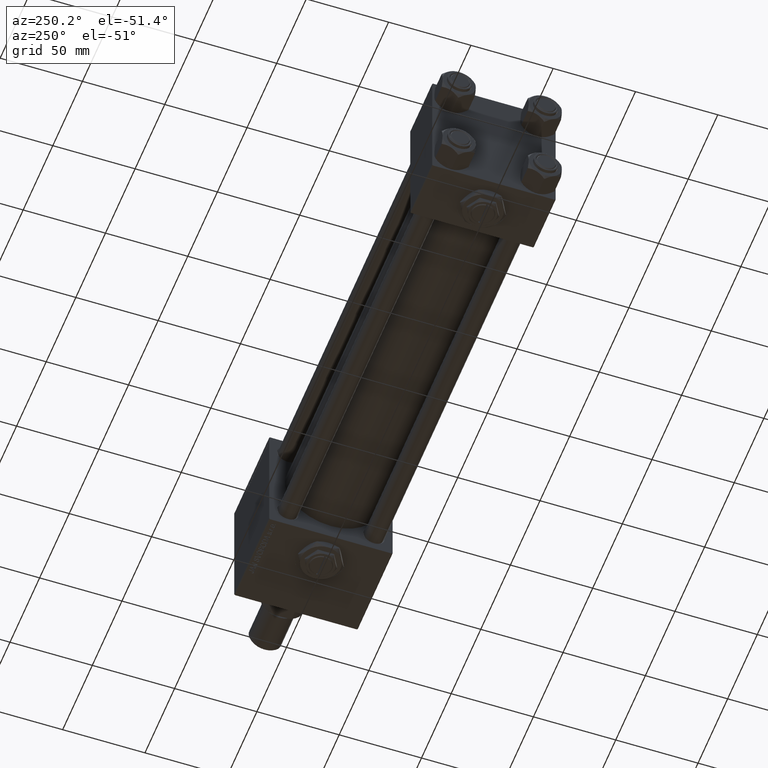
[diagram: clean part render]
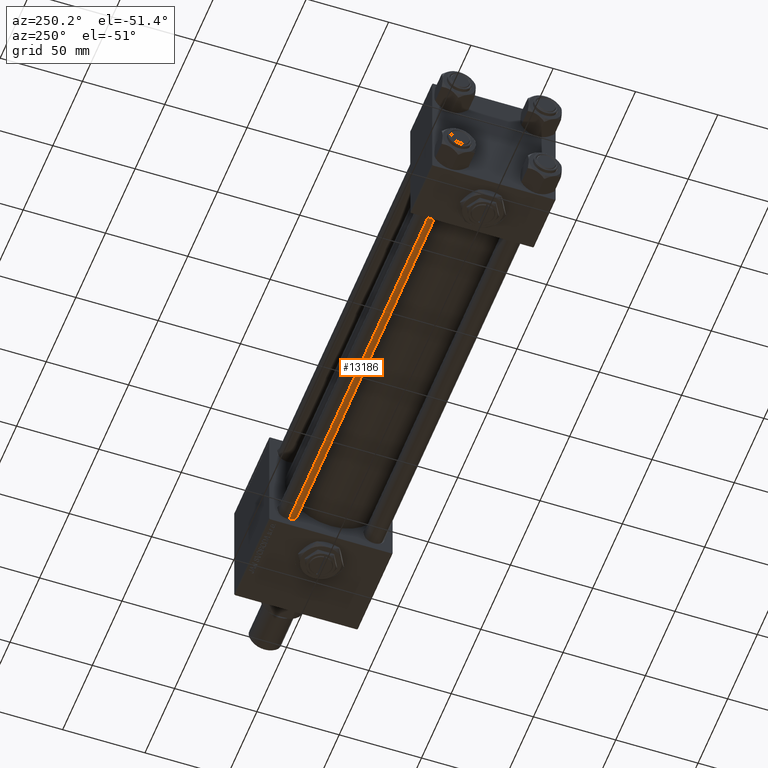
[diagram: same view with one face highlighted and labeled with its STEP entity id]
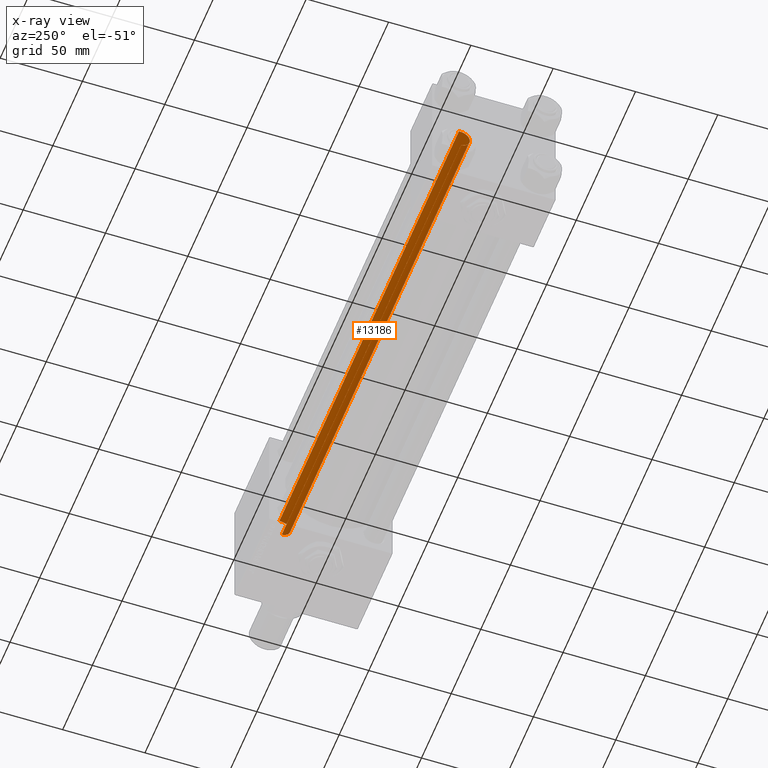
[diagram: x-ray of the same camera — body ghosted, the highlighted face saturated]
A machine part, auxiliary view. The second image highlights one B-rep face of the part: STEP entity #13186.
The next image is the same camera in x-ray: the body ghosted, the highlighted face saturated — about 0% of this face is hidden behind the body in this view.
In plain terms, the highlighted cylindrical surface (edge-blend (fillet) strip) has radius 6 mm, axis along (1, -0, 0).
Its self-contained STEP definition (entity closure, byte-faithful):
#111 = CARTESIAN_POINT ( 'NONE',  ( 6.000000000000000888, 7.347880794884120722E-16, 0.4999999999999449329 ) ) ;
#199 = ORIENTED_EDGE ( 'NONE', *, *, #42159, .T. ) ;
#273 = ORIENTED_EDGE ( 'NONE', *, *, #30922, .T. ) ;
#490 = CARTESIAN_POINT ( 'NONE',  ( -6.000000000000000888, 0.000000000000000000, 0.4999999999999449329 ) ) ;
#2444 = DIRECTION ( 'NONE',  ( 1.000000000000000000, 0.000000000000000000, 0.000000000000000000 ) ) ;
#3389 = CIRCLE ( 'NONE', #11070, 6.000000000000000888 ) ;
#5624 = AXIS2_PLACEMENT_3D ( 'NONE', #22717, #45980, #2444 ) ;
#5762 = CARTESIAN_POINT ( 'NONE',  ( 0.000000000000000000, 0.000000000000000000, 304.0000000000000000 ) ) ;
#6548 = CARTESIAN_POINT ( 'NONE',  ( 6.000000000000000888, 7.347880794884120722E-16, 304.0000000000000000 ) ) ;
#8548 = CARTESIAN_POINT ( 'NONE',  ( 6.000000000000000888, 7.347880794884120722E-16, 303.5000000000000000 ) ) ;
#9481 = AXIS2_PLACEMENT_3D ( 'NONE', #5762, #47039, #42516 ) ;
#10770 = CARTESIAN_POINT ( 'NONE',  ( 0.000000000000000000, 0.000000000000000000, 0.4999999999999449329 ) ) ;
#11070 = AXIS2_PLACEMENT_3D ( 'NONE', #10770, #15562, #31823 ) ;
#13186 = ADVANCED_FACE ( 'NONE', ( #30545 ), #46777, .T. ) ;
#14203 = VERTEX_POINT ( 'NONE', #8548 ) ;
#15562 = DIRECTION ( 'NONE',  ( -0.000000000000000000, -0.000000000000000000, 1.000000000000000000 ) ) ;
#21082 = CARTESIAN_POINT ( 'NONE',  ( -6.000000000000000888, 0.000000000000000000, 303.5000000000000000 ) ) ;
#22717 = CARTESIAN_POINT ( 'NONE',  ( 0.000000000000000000, 0.000000000000000000, 303.5000000000000000 ) ) ;
#24263 = ORIENTED_EDGE ( 'NONE', *, *, #45413, .F. ) ;
#24314 = VERTEX_POINT ( 'NONE', #21082 ) ;
#26161 = VECTOR ( 'NONE', #48352, 1000.000000000000000 ) ;
#28122 = LINE ( 'NONE', #52352, #26161 ) ;
#28384 = DIRECTION ( 'NONE',  ( -0.000000000000000000, -0.000000000000000000, -1.000000000000000000 ) ) ;
#30545 = FACE_OUTER_BOUND ( 'NONE', #49969, .T. ) ;
#30922 = EDGE_CURVE ( 'NONE', #24314, #49339, #28122, .T. ) ;
#31823 = DIRECTION ( 'NONE',  ( 1.000000000000000000, 0.000000000000000000, 0.000000000000000000 ) ) ;
#37065 = VERTEX_POINT ( 'NONE', #111 ) ;
#39486 = ORIENTED_EDGE ( 'NONE', *, *, #50937, .T. ) ;
#40602 = VECTOR ( 'NONE', #28384, 1000.000000000000000 ) ;
#42159 = EDGE_CURVE ( 'NONE', #14203, #24314, #48194, .T. ) ;
#42516 = DIRECTION ( 'NONE',  ( -1.000000000000000000, 0.000000000000000000, 0.000000000000000000 ) ) ;
#43039 = LINE ( 'NONE', #6548, #40602 ) ;
#45413 = EDGE_CURVE ( 'NONE', #14203, #37065, #43039, .T. ) ;
#45980 = DIRECTION ( 'NONE',  ( 0.000000000000000000, 0.000000000000000000, -1.000000000000000000 ) ) ;
#46777 = CYLINDRICAL_SURFACE ( 'NONE', #9481, 6.000000000000000888 ) ;
#47039 = DIRECTION ( 'NONE',  ( -0.000000000000000000, -0.000000000000000000, -1.000000000000000000 ) ) ;
#48194 = CIRCLE ( 'NONE', #5624, 6.000000000000000888 ) ;
#48352 = DIRECTION ( 'NONE',  ( -0.000000000000000000, -0.000000000000000000, -1.000000000000000000 ) ) ;
#49339 = VERTEX_POINT ( 'NONE', #490 ) ;
#49969 = EDGE_LOOP ( 'NONE', ( #24263, #199, #273, #39486 ) ) ;
#50937 = EDGE_CURVE ( 'NONE', #49339, #37065, #3389, .T. ) ;
#52352 = CARTESIAN_POINT ( 'NONE',  ( -6.000000000000000888, 0.000000000000000000, 304.0000000000000000 ) ) ;